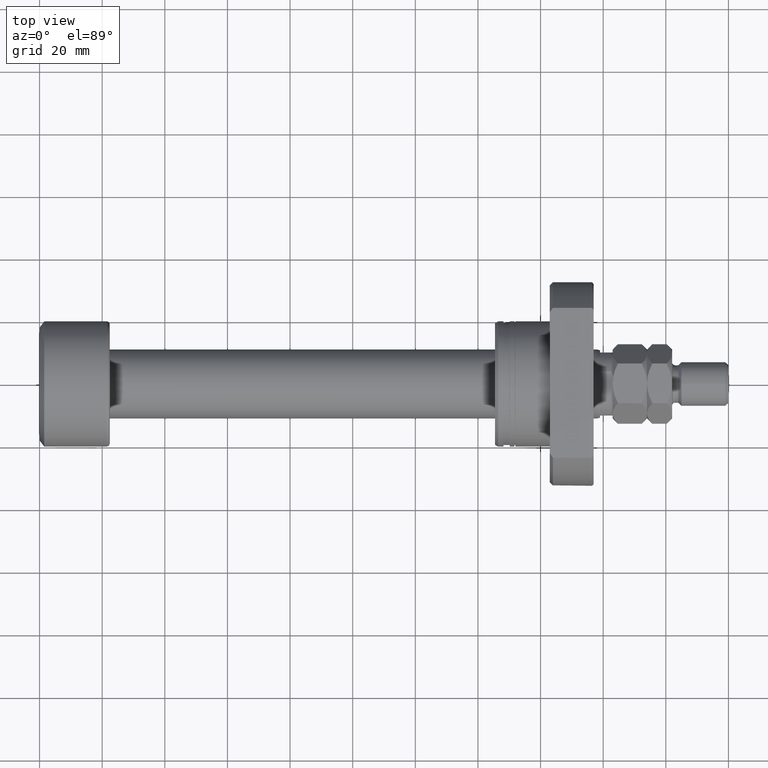
[diagram: clean part render]
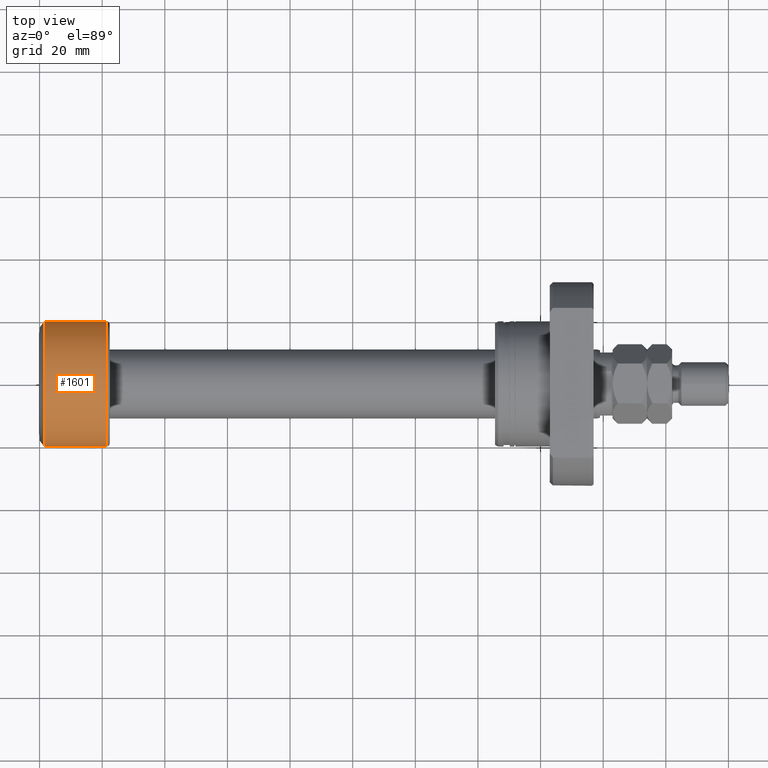
[diagram: same view with one face highlighted and labeled with its STEP entity id]
A machine part, top view. The second image highlights one B-rep face of the part: STEP entity #1601.
In plain terms, the highlighted cylindrical surface (partial cylindrical patch) has radius 20 mm, axis along (-1, -0, -0).
Its self-contained STEP definition (entity closure, byte-faithful):
#306 = CARTESIAN_POINT ( 'NONE',  ( 21.40000000000000924, 20.00000000000000000, 2.449293598294706513E-15 ) ) ;
#448 = ORIENTED_EDGE ( 'NONE', *, *, #1366, .T. ) ;
#724 = FACE_OUTER_BOUND ( 'NONE', #1352, .T. ) ;
#835 = VERTEX_POINT ( 'NONE', #4702 ) ;
#857 = AXIS2_PLACEMENT_3D ( 'NONE', #2542, #1503, #3362 ) ;
#1352 = EDGE_LOOP ( 'NONE', ( #448, #2922, #3177, #4228 ) ) ;
#1366 = EDGE_CURVE ( 'NONE', #3068, #1541, #3322, .T. ) ;
#1396 = DIRECTION ( 'NONE',  ( -1.000000000000000000, -1.069542322069065801E-17, -0.000000000000000000 ) ) ;
#1503 = DIRECTION ( 'NONE',  ( -1.000000000000000000, -1.069542322069065801E-17, -0.000000000000000000 ) ) ;
#1541 = VERTEX_POINT ( 'NONE', #306 ) ;
#1567 = DIRECTION ( 'NONE',  ( 1.084202172485504434E-17, -1.000000000000000000, 0.000000000000000000 ) ) ;
#1601 = ADVANCED_FACE ( 'NONE', ( #724 ), #4014, .T. ) ;
#1835 = VERTEX_POINT ( 'NONE', #2035 ) ;
#2035 = CARTESIAN_POINT ( 'NONE',  ( 1.500000000000002442, 20.00000000000000000, 0.000000000000000000 ) ) ;
#2260 = VECTOR ( 'NONE', #4589, 1000.000000000000000 ) ;
#2365 = DIRECTION ( 'NONE',  ( -1.000000000000000000, -1.069542322069065801E-17, -0.000000000000000000 ) ) ;
#2542 = CARTESIAN_POINT ( 'NONE',  ( 0.000000000000000000, 0.000000000000000000, 0.000000000000000000 ) ) ;
#2872 = DIRECTION ( 'NONE',  ( 0.000000000000000000, -1.000000000000000000, 0.000000000000000000 ) ) ;
#2922 = ORIENTED_EDGE ( 'NONE', *, *, #4676, .T. ) ;
#3033 = LINE ( 'NONE', #3079, #4609 ) ;
#3046 = EDGE_CURVE ( 'NONE', #3068, #835, #3561, .T. ) ;
#3068 = VERTEX_POINT ( 'NONE', #4611 ) ;
#3079 = CARTESIAN_POINT ( 'NONE',  ( -2.139084644138131786E-16, 20.00000000000000000, 2.449293598294706513E-15 ) ) ;
#3177 = ORIENTED_EDGE ( 'NONE', *, *, #3795, .F. ) ;
#3322 = CIRCLE ( 'NONE', #3797, 20.00000000000000000 ) ;
#3345 = CIRCLE ( 'NONE', #4516, 20.00000000000000000 ) ;
#3362 = DIRECTION ( 'NONE',  ( 1.069542322069065955E-17, -1.000000000000000000, 0.000000000000000000 ) ) ;
#3538 = CARTESIAN_POINT ( 'NONE',  ( 2.139084644138131786E-16, -20.00000000000000000, 0.000000000000000000 ) ) ;
#3561 = LINE ( 'NONE', #3538, #2260 ) ;
#3744 = CARTESIAN_POINT ( 'NONE',  ( 1.500000000000002442, 1.604313483103601552E-17, 0.000000000000000000 ) ) ;
#3795 = EDGE_CURVE ( 'NONE', #835, #1835, #3345, .T. ) ;
#3797 = AXIS2_PLACEMENT_3D ( 'NONE', #4714, #1396, #2872 ) ;
#4014 = CYLINDRICAL_SURFACE ( 'NONE', #857, 20.00000000000000000 ) ;
#4228 = ORIENTED_EDGE ( 'NONE', *, *, #3046, .F. ) ;
#4485 = DIRECTION ( 'NONE',  ( -1.000000000000000000, -1.069542322069065801E-17, -0.000000000000000000 ) ) ;
#4516 = AXIS2_PLACEMENT_3D ( 'NONE', #3744, #2365, #1567 ) ;
#4589 = DIRECTION ( 'NONE',  ( -1.000000000000000000, -1.069542322069065801E-17, -0.000000000000000000 ) ) ;
#4609 = VECTOR ( 'NONE', #4485, 1000.000000000000000 ) ;
#4611 = CARTESIAN_POINT ( 'NONE',  ( 21.40000000000000924, -20.00000000000000000, 0.000000000000000000 ) ) ;
#4676 = EDGE_CURVE ( 'NONE', #1541, #1835, #3033, .T. ) ;
#4702 = CARTESIAN_POINT ( 'NONE',  ( 1.500000000000002887, -20.00000000000000000, 2.449293598294706513E-15 ) ) ;
#4714 = CARTESIAN_POINT ( 'NONE',  ( 21.40000000000000924, 2.288820569227802283E-16, 0.000000000000000000 ) ) ;